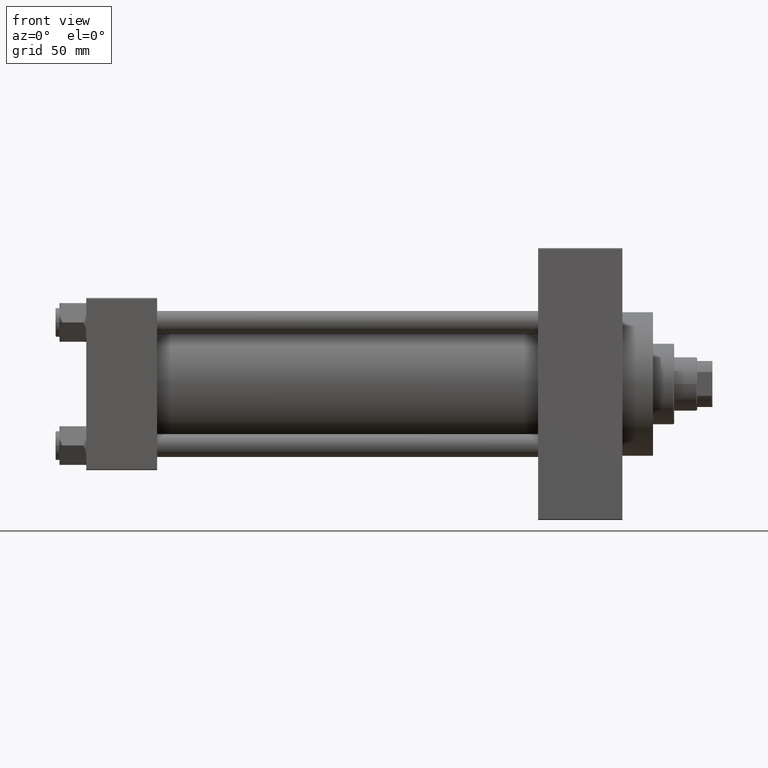
[diagram: clean part render]
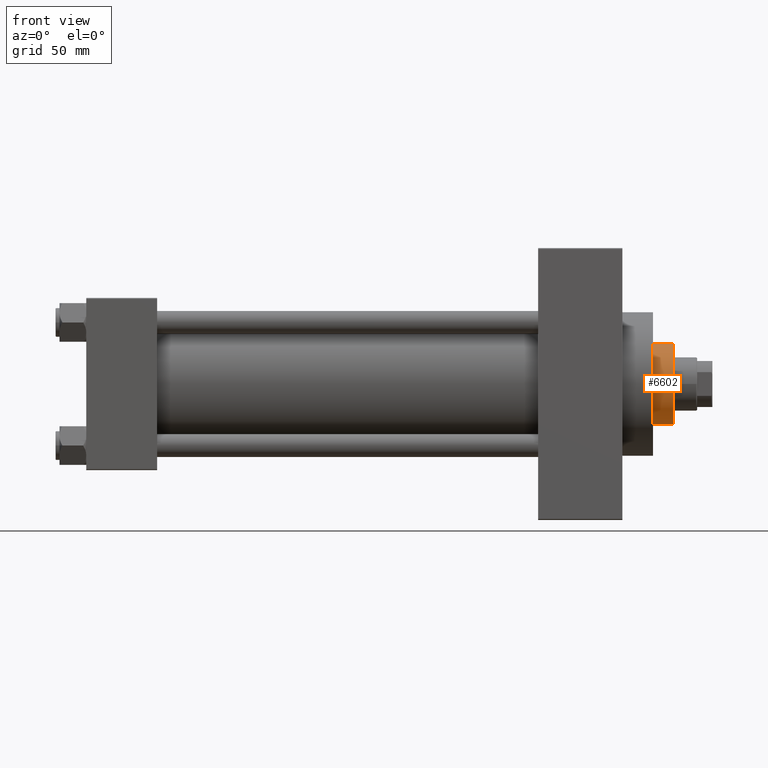
[diagram: same view with one face highlighted and labeled with its STEP entity id]
A machine part, front view. The second image highlights one B-rep face of the part: STEP entity #6602.
In plain terms, the highlighted cylindrical surface (partial cylindrical patch) has radius 21 mm, axis along (-1, 0, 0).
Its self-contained STEP definition (entity closure, byte-faithful):
#2119 = DIRECTION ( 'NONE',  ( -1.000000000000000000, 0.000000000000000000, 0.000000000000000000 ) ) ;
#2205 = AXIS2_PLACEMENT_3D ( 'NONE', #41745, #13094, #2119 ) ;
#2224 = EDGE_LOOP ( 'NONE', ( #46846, #22823, #45695, #17389 ) ) ;
#3193 = CARTESIAN_POINT ( 'NONE',  ( 0.000000000000000000, 0.000000000000000000, 53.76000000000001933 ) ) ;
#6602 = ADVANCED_FACE ( 'NONE', ( #8810 ), #34588, .T. ) ;
#7616 = CIRCLE ( 'NONE', #34293, 21.00000000000000000 ) ;
#8405 = VECTOR ( 'NONE', #25908, 1000.000000000000000 ) ;
#8681 = CARTESIAN_POINT ( 'NONE',  ( -21.00000000000000000, 0.000000000000000000, 43.25999999999999801 ) ) ;
#8810 = FACE_OUTER_BOUND ( 'NONE', #2224, .T. ) ;
#13094 = DIRECTION ( 'NONE',  ( -0.000000000000000000, -0.000000000000000000, -1.000000000000000000 ) ) ;
#14156 = DIRECTION ( 'NONE',  ( 1.000000000000000000, 0.000000000000000000, 0.000000000000000000 ) ) ;
#17389 = ORIENTED_EDGE ( 'NONE', *, *, #21470, .F. ) ;
#18129 = CARTESIAN_POINT ( 'NONE',  ( 21.00000000000000000, 2.571758278209441661E-15, 43.25999999999999801 ) ) ;
#18513 = LINE ( 'NONE', #44076, #8405 ) ;
#21355 = EDGE_CURVE ( 'NONE', #31929, #31408, #18513, .T. ) ;
#21470 = EDGE_CURVE ( 'NONE', #29101, #33490, #35672, .T. ) ;
#21791 = DIRECTION ( 'NONE',  ( -0.000000000000000000, -0.000000000000000000, -1.000000000000000000 ) ) ;
#22823 = ORIENTED_EDGE ( 'NONE', *, *, #21355, .T. ) ;
#24201 = CARTESIAN_POINT ( 'NONE',  ( -21.00000000000000000, 0.000000000000000000, 53.76000000000001933 ) ) ;
#25908 = DIRECTION ( 'NONE',  ( -0.000000000000000000, -0.000000000000000000, -1.000000000000000000 ) ) ;
#26428 = AXIS2_PLACEMENT_3D ( 'NONE', #3193, #32292, #14156 ) ;
#28535 = CARTESIAN_POINT ( 'NONE',  ( 21.00000000000000000, 2.571758278209441661E-15, 53.76000000000001933 ) ) ;
#29101 = VERTEX_POINT ( 'NONE', #24201 ) ;
#31408 = VERTEX_POINT ( 'NONE', #18129 ) ;
#31929 = VERTEX_POINT ( 'NONE', #28535 ) ;
#32292 = DIRECTION ( 'NONE',  ( 0.000000000000000000, 0.000000000000000000, -1.000000000000000000 ) ) ;
#33490 = VERTEX_POINT ( 'NONE', #8681 ) ;
#34293 = AXIS2_PLACEMENT_3D ( 'NONE', #42878, #46703, #35954 ) ;
#34588 = CYLINDRICAL_SURFACE ( 'NONE', #2205, 21.00000000000000000 ) ;
#35672 = LINE ( 'NONE', #39246, #41174 ) ;
#35759 = EDGE_CURVE ( 'NONE', #29101, #31929, #40934, .T. ) ;
#35954 = DIRECTION ( 'NONE',  ( 1.000000000000000000, 0.000000000000000000, 0.000000000000000000 ) ) ;
#39246 = CARTESIAN_POINT ( 'NONE',  ( -21.00000000000000000, 0.000000000000000000, 54.26000000000000512 ) ) ;
#40934 = CIRCLE ( 'NONE', #26428, 21.00000000000000000 ) ;
#41174 = VECTOR ( 'NONE', #21791, 1000.000000000000000 ) ;
#41745 = CARTESIAN_POINT ( 'NONE',  ( 0.000000000000000000, 0.000000000000000000, 54.26000000000000512 ) ) ;
#42612 = EDGE_CURVE ( 'NONE', #31408, #33490, #7616, .T. ) ;
#42878 = CARTESIAN_POINT ( 'NONE',  ( 0.000000000000000000, 0.000000000000000000, 43.25999999999999801 ) ) ;
#44076 = CARTESIAN_POINT ( 'NONE',  ( 21.00000000000000000, 2.571758278209441661E-15, 54.26000000000000512 ) ) ;
#45695 = ORIENTED_EDGE ( 'NONE', *, *, #42612, .T. ) ;
#46703 = DIRECTION ( 'NONE',  ( 0.000000000000000000, 0.000000000000000000, 1.000000000000000000 ) ) ;
#46846 = ORIENTED_EDGE ( 'NONE', *, *, #35759, .T. ) ;